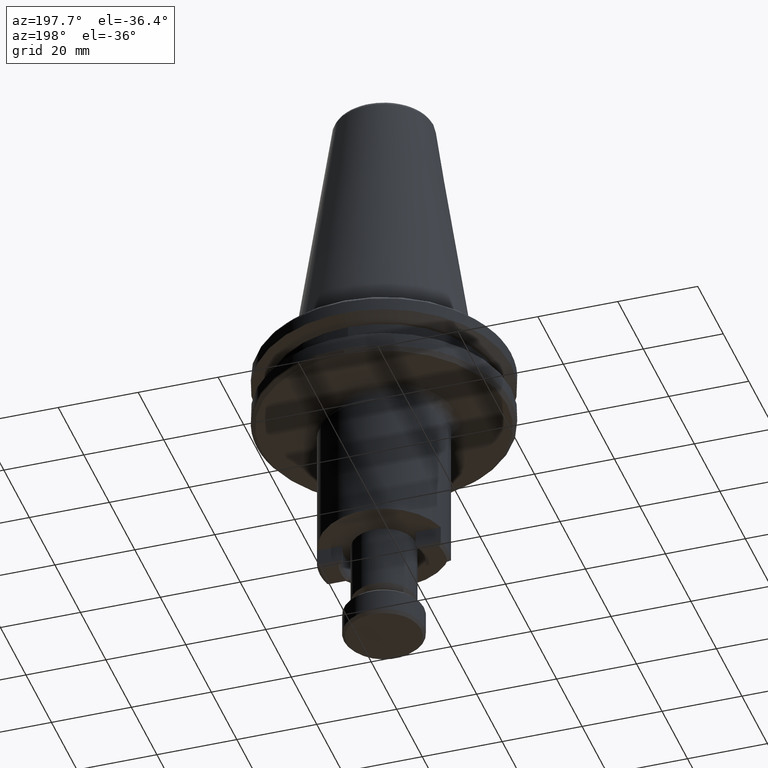
[diagram: clean part render]
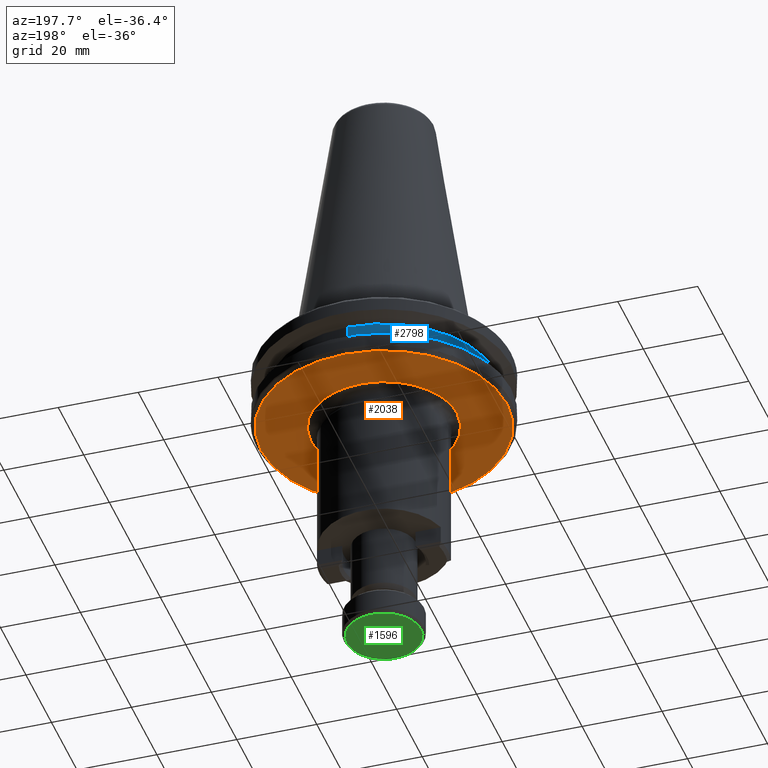
[diagram: same view with three faces highlighted in distinct colors, each labeled with its STEP entity id]
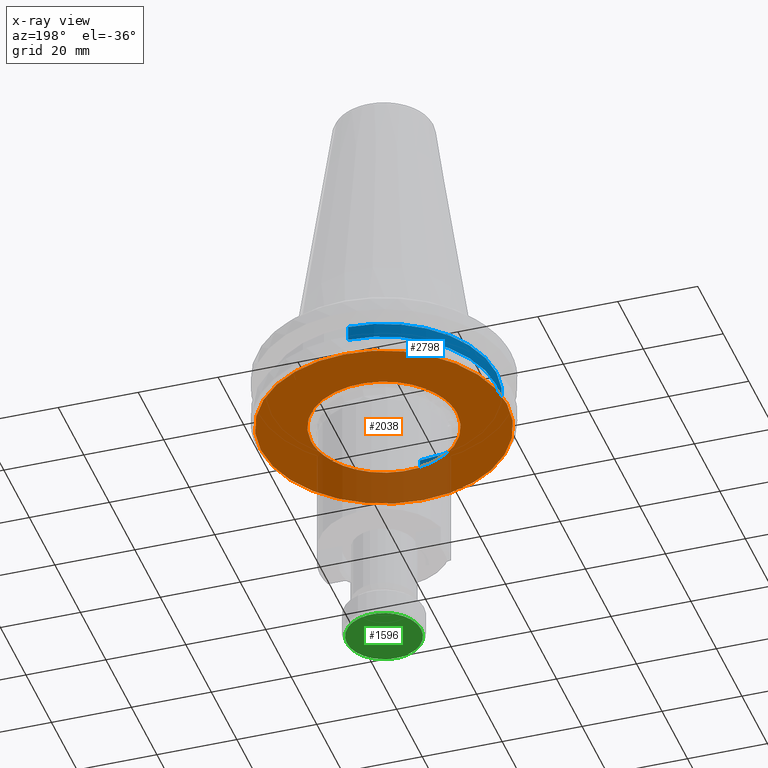
[diagram: x-ray of the same camera — body ghosted, the three highlighted faces saturated]
A machine part, auxiliary view with three faces highlighted in distinct colors.
The next image is the same camera in x-ray (body ghosted, the three faces saturated) — at least one of them is partly hidden behind the body in this view.
Their STEP definitions:

[orange] entity #2038 — the highlighted planar face has unit normal (0, 0, -1).
#137 = FACE_OUTER_BOUND ( 'NONE', #2966, .T. ) ;
#179 = CARTESIAN_POINT ( 'NONE',  ( 57.42240495508172400, 80.56351381232836700, 65.32314626776781100 ) ) ;
#190 = CARTESIAN_POINT ( 'NONE',  ( 57.36876700023148600, 80.75756612998836200, 65.32314626776782500 ) ) ;
#195 = CARTESIAN_POINT ( 'NONE',  ( 57.26706259045501900, 81.14679842264423800, 65.32314626776781100 ) ) ;
#244 = CARTESIAN_POINT ( 'NONE',  ( 56.74590007380801600, 85.49383738268851100, 65.32314626776781100 ) ) ;
#293 = CARTESIAN_POINT ( 'NONE',  ( 56.74590007657246800, 85.08732261833903000, 65.32314626776781100 ) ) ;
#295 = CARTESIAN_POINT ( 'NONE',  ( 93.12671189041458300, 82.66586528737627800, 65.32314626776781100 ) ) ;
#334 = CARTESIAN_POINT ( 'NONE',  ( 56.76614344545315300, 84.47878609937591000, 65.32314626776781100 ) ) ;
#343 = CARTESIAN_POINT ( 'NONE',  ( 91.47939218736434000, 77.44209249785640700, 65.32314626776783900 ) ) ;
#369 = CARTESIAN_POINT ( 'NONE',  ( 56.88496776371971500, 83.24108752922967400, 65.32314626776782500 ) ) ;
#380 = CARTESIAN_POINT ( 'NONE',  ( 56.86356462643578900, 83.41763131604655300, 65.32314626776779700 ) ) ;
#418 = CARTESIAN_POINT ( 'NONE',  ( 91.46337753945591900, 77.40949128364312100, 65.32314626776782500 ) ) ;
#434 = PLANE ( 'NONE',  #1000 ) ;
#492 = FACE_BOUND ( 'NONE', #1555, .T. ) ;
#515 = CARTESIAN_POINT ( 'NONE',  ( 93.34590007933917400, 85.49383738268851100, 65.32314626776781100 ) ) ;
#516 = B_SPLINE_CURVE_WITH_KNOTS ( 'NONE', 3,
 ( #2305, #2378, #2353, #2297, #2293, #2290, #2287, #2268, #2253, #2251, #2246, #2241, #2218, #2212, #2208, #2201, #2198, #2192, #2188, #2171, #2166, #2154, #2143, #2139, #1703, #1699, #1691, #2133, #2130, #2105, #2101, #2096, #2091, #2085, #2081, #2076, #2070, #2060, #2057, #2054, #2052, #2051, #2050, #2044, #2036, #2035, #2030, #2024, #2020, #2014, #2010, #2007, #1992, #1988, #1984, #1982, #1975, #1969, #1960, #1938, #1928, #1923, #1920, #1915, #1913, #1903, #1897, #1894, #1880, #1876, #1865, #1858, #1853, #1847, #1839, #1831, #1823, #1819, #1815, #1812, #1807, #1803, #1798, #1794, #1782, #1777, #1765, #1760, #1757, #1748, #1744, #1738, #1734, #1724, #1721, #1714, #1710, #1680, #1666, #1661, #1656, #1646, #1643, #1636, #1624, #1619, #1612, #1603, #1599, #1588, #1583, #1560, #1544, #1543, #1539, #2281, #2274, #2264, #1504, #1498, #1494, #1492, #1481, #1468, #1462, #1452, #1441, #1433, #1427, #1401 ),
 .UNSPECIFIED., .F., .F.,
 ( 4, 1, 1, 1, 1, 1, 2, 2, 1, 1, 1, 1, 1, 2, 2, 1, 1, 1, 1, 1, 2, 2, 1, 1, 1, 1, 1, 2, 2, 1, 1, 1, 1, 1, 2, 2, 1, 1, 1, 1, 1, 2, 2, 1, 1, 1, 1, 2, 2, 2, 1, 1, 1, 1, 2, 2, 1, 1, 1, 1, 1, 2, 2, 1, 1, 1, 1, 1, 2, 2, 1, 1, 1, 1, 1, 2, 2, 1, 1, 1, 1, 1, 2, 2, 1, 1, 1, 1, 1, 2, 2, 1, 1, 1, 1, 1, 2, 2, 4 ),
 ( 0.0000000000000000000, 0.03124999999995879700, 0.04687499999993823000, 0.05468749999992794700, 0.05859374999992286700, 0.06054687499992026500, 0.06152343749991896800, 0.06249999999991766300, 0.09374999999988666000, 0.1093749999998716200, 0.1171874999998637600, 0.1210937499998598300, 0.1230468749998578800, 0.1240234374998567700, 0.1249999999998556400, 0.1562499999998337400, 0.1718749999998228100, 0.1796874999998173400, 0.1835937499998142300, 0.1855468749998124800, 0.1865234374998116000, 0.1874999999998107300, 0.2187499999997970500, 0.2343749999997902200, 0.2421874999997862800, 0.2460937499997843400, 0.2480468749997833400, 0.2490234374997833400, 0.2499999999997834000, 0.2812499999997776200, 0.2968749999997749600, 0.3046874999997736300, 0.3085937499997727400, 0.3105468749997725700, 0.3115234374997729600, 0.3124999999997732900, 0.3437499999997761800, 0.3593749999997773400, 0.3671874999997776800, 0.3710937499997779600, 0.3730468749997777900, 0.3740234374997775700, 0.3749999999997773400, 0.4062499999997696800, 0.4218749999997655800, 0.4296874999997635800, 0.4335937499997625800, 0.4355468749997621900, 0.4374999999997617500, 0.4999999999997535300, 0.5312499999997497600, 0.5468749999997478700, 0.5546874999997473100, 0.5585937499997472000, 0.5605468749997468700, 0.5624999999997465400, 0.5937499999997459800, 0.6093749999997454300, 0.6171874999997450900, 0.6210937499997449800, 0.6230468749997450900, 0.6240234374997449800, 0.6249999999997448700, 0.6562499999997603000, 0.6718749999997680700, 0.6796874999997722900, 0.6835937499997747400, 0.6855468749997756200, 0.6865234374997757300, 0.6874999999997757300, 0.7187499999997850600, 0.7343749999997893900, 0.7421874999997918300, 0.7460937499997931700, 0.7480468749997938300, 0.7490234374997943900, 0.7499999999997948300, 0.7812499999998006000, 0.7968749999998033800, 0.8046874999998048200, 0.8085937499998054900, 0.8105468749998062700, 0.8115234374998066000, 0.8124999999998070400, 0.8437499999998312500, 0.8593749999998430100, 0.8671874999998489000, 0.8710937499998519000, 0.8730468749998530100, 0.8740234374998538900, 0.8749999999998547800, 0.9062499999998899800, 0.9218749999999076300, 0.9296874999999164000, 0.9335937499999204000, 0.9355468749999222800, 0.9365234374999237300, 0.9374999999999250600, 1.000000000000000000 ),
 .UNSPECIFIED. ) ;
#534 = CARTESIAN_POINT ( 'NONE',  ( 56.90593919076052700, 83.07888403072722400, 65.32314626776781100 ) ) ;
#537 = CARTESIAN_POINT ( 'NONE',  ( 60.32993639085017200, 74.61575792023070600, 65.32314626776779700 ) ) ;
#543 = CARTESIAN_POINT ( 'NONE',  ( 62.59493198929205700, 72.08078666628665600, 65.32314626776781100 ) ) ;
#547 = CARTESIAN_POINT ( 'NONE',  ( 62.18766515591195100, 72.46535905245356400, 65.32314626776781100 ) ) ;
#556 = CARTESIAN_POINT ( 'NONE',  ( 56.89622286169598200, 83.15284942265030600, 65.32314626776781100 ) ) ;
#559 = CARTESIAN_POINT ( 'NONE',  ( 60.38412707937595800, 74.54291586025823300, 65.32314626776781100 ) ) ;
#569 = CARTESIAN_POINT ( 'NONE',  ( 60.36242316916954600, 74.57203601448199500, 65.32314626776779700 ) ) ;
#582 = CARTESIAN_POINT ( 'NONE',  ( 57.08593977059850000, 81.92977363729990300, 65.32314626776782500 ) ) ;
#591 = CARTESIAN_POINT ( 'NONE',  ( 56.96889621020096000, 82.60862775730839800, 65.32314626776781100 ) ) ;
#594 = CARTESIAN_POINT ( 'NONE',  ( 56.82518658654240800, 83.77098918431291000, 65.32314626776782500 ) ) ;
#604 = B_SPLINE_CURVE_WITH_KNOTS ( 'NONE', 3,
 ( #244, #293, #334, #594, #380, #369, #556, #617, #609, #534, #591, #582, #195, #190, #179, #1759, #1770, #1644, #1649, #1657, #1796, #1980, #1881, #1874, #644, #636, #635, #1832, #1830, #1818, #1867, #1850, #1844, #537, #569, #559, #650, #808, #606, #547, #543, #1671, #1667, #1663, #1615, #1780, #1772, #1225, #1808, #1805, #1746, #1743, #1735, #1732, #1722, #1720, #1712, #1709, #1701, #1698, #1689, #1686, #1683, #1678, #1675, #1520, #1516, #1553, #1626, #1502, #1490, #1527, #1478, #1470, #1506, #1461, #1459, #1480, #1443, #1216, #1467, #1403, #1453, #1450, #1398, #1373, #1409, #1414, #1390, #1394, #1632, #1100, #1095, #1344, #1342, #1371, #1363, #1356, #1382, #1377, #3029, #1321, #1063, #1320, #2982, #1207, #418, #343, #973, #2610, #3069, #1054, #1274, #2873, #2523, #3177, #852, #966, #2283, #3134, #1879, #295, #2672, #3120, #1014, #3076, #1091, #1638, #2972, #1145 ),
 .UNSPECIFIED., .F., .F.,
 ( 4, 1, 1, 1, 1, 1, 2, 2, 1, 1, 1, 1, 1, 2, 2, 1, 1, 1, 1, 1, 2, 2, 1, 1, 1, 1, 1, 2, 2, 1, 1, 1, 1, 1, 2, 2, 1, 1, 1, 1, 1, 2, 2, 1, 1, 1, 1, 2, 2, 2, 1, 1, 1, 1, 2, 2, 1, 1, 1, 1, 1, 2, 2, 1, 1, 1, 1, 1, 2, 2, 1, 1, 1, 1, 1, 2, 2, 1, 1, 1, 1, 1, 2, 2, 1, 1, 1, 1, 1, 2, 2, 1, 1, 1, 1, 1, 2, 2, 4 ),
 ( 0.0000000000000000000, 0.03124999999997785800, 0.04687499999996679000, 0.05468749999996074700, 0.05859374999995719400, 0.06054687499995485600, 0.06152343749995421700, 0.06249999999995357200, 0.09374999999995213600, 0.1093749999999509300, 0.1171874999999499200, 0.1210937499999490100, 0.1230468749999485100, 0.1240234374999478600, 0.1249999999999472100, 0.1562499999999373600, 0.1718749999999320300, 0.1796874999999293900, 0.1835937499999284200, 0.1855468749999275600, 0.1865234374999271400, 0.1874999999999267300, 0.2187499999999122400, 0.2343749999999046600, 0.2421874999999008600, 0.2460937499998989700, 0.2480468749998983300, 0.2490234374998980000, 0.2499999999998976900, 0.2812499999998907500, 0.2968749999998872000, 0.3046874999998856500, 0.3085937499998845900, 0.3105468749998840900, 0.3115234374998838700, 0.3124999999998835900, 0.3437499999998659400, 0.3593749999998571100, 0.3671874999998526700, 0.3710937499998500100, 0.3730468749998486800, 0.3740234374998484500, 0.3749999999998481800, 0.4062499999998357400, 0.4218749999998297500, 0.4296874999998263600, 0.4335937499998243600, 0.4355468749998231400, 0.4374999999998219200, 0.4999999999997946100, 0.5312499999997810600, 0.5468749999997745100, 0.5546874999997715200, 0.5585937499997702900, 0.5605468749997699600, 0.5624999999997695200, 0.5937499999997635200, 0.6093749999997606400, 0.6171874999997589700, 0.6210937499997579700, 0.6230468749997576400, 0.6240234374997576400, 0.6249999999997577500, 0.6562499999997549700, 0.6718749999997539700, 0.6796874999997537500, 0.6835937499997536400, 0.6855468749997538600, 0.6865234374997542000, 0.6874999999997544200, 0.7187499999997738500, 0.7343749999997837300, 0.7421874999997887200, 0.7460937499997915000, 0.7480468749997931700, 0.7490234374997937200, 0.7499999999997941600, 0.7812499999998162600, 0.7968749999998273600, 0.8046874999998332400, 0.8085937499998362400, 0.8105468749998376900, 0.8115234374998381300, 0.8124999999998385700, 0.8437499999998450100, 0.8593749999998487900, 0.8671874999998506800, 0.8710937499998521200, 0.8730468749998527800, 0.8740234374998535600, 0.8749999999998543400, 0.9062499999998728800, 0.9218749999998827600, 0.9296874999998879800, 0.9335937499998906400, 0.9355468749998923100, 0.9365234374998936400, 0.9374999999998949700, 1.000000000000000000 ),
 .UNSPECIFIED. ) ;
#606 = CARTESIAN_POINT ( 'NONE',  ( 61.40560511386543400, 73.26435942714043400, 65.32314626776778300 ) ) ;
#609 = CARTESIAN_POINT ( 'NONE',  ( 56.90448626498098900, 83.08983587928635500, 65.32314626776782500 ) ) ;
#617 = CARTESIAN_POINT ( 'NONE',  ( 56.90116508854315200, 83.11504033129396900, 65.32314626776781100 ) ) ;
#620 = EDGE_CURVE ( 'NONE', #2379, #775, #516, .T. ) ;
#635 = CARTESIAN_POINT ( 'NONE',  ( 58.58225681731163800, 77.50392742685156100, 65.32314626776781100 ) ) ;
#636 = CARTESIAN_POINT ( 'NONE',  ( 58.56811207616245000, 77.53314141889934800, 65.32314626776781100 ) ) ;
#644 = CARTESIAN_POINT ( 'NONE',  ( 58.54695528030374900, 77.57698522901913000, 65.32314626776782500 ) ) ;
#650 = CARTESIAN_POINT ( 'NONE',  ( 60.39386767253105900, 74.52988236346887200, 65.32314626776782500 ) ) ;
#741 = ORIENTED_EDGE ( 'NONE', *, *, #2406, .T. ) ;
#775 = VERTEX_POINT ( 'NONE', #825 ) ;
#808 = CARTESIAN_POINT ( 'NONE',  ( 60.79093700590637200, 74.00039792376327300, 65.32314626776782500 ) ) ;
#825 = CARTESIAN_POINT ( 'NONE',  ( 56.74590007380801600, 85.49383738268851100, 65.32314626776781100 ) ) ;
#852 = CARTESIAN_POINT ( 'NONE',  ( 92.60478637749143600, 80.33867414243586300, 65.32314626776785400 ) ) ;
#858 = AXIS2_PLACEMENT_3D ( 'NONE', #1500, #1448, #1488 ) ;
#872 = CARTESIAN_POINT ( 'NONE',  ( 104.7299084825736100, 54.51712129944631600, 65.32314626776781100 ) ) ;
#966 = CARTESIAN_POINT ( 'NONE',  ( 92.60987425574485600, 80.35603779457508700, 65.32314626776781100 ) ) ;
#973 = CARTESIAN_POINT ( 'NONE',  ( 91.48823345089606100, 77.46016453285679400, 65.32314626776781100 ) ) ;
#1000 = AXIS2_PLACEMENT_3D ( 'NONE', #872, #2412, #2434 ) ;
#1014 = CARTESIAN_POINT ( 'NONE',  ( 93.17622168279068300, 83.00756742110584700, 65.32314626776781100 ) ) ;
#1054 = CARTESIAN_POINT ( 'NONE',  ( 92.34137026512570400, 79.50414192299152200, 65.32314626776781100 ) ) ;
#1063 = CARTESIAN_POINT ( 'NONE',  ( 91.02901205116289400, 76.57302062811849900, 65.32314626776781100 ) ) ;
#1091 = CARTESIAN_POINT ( 'NONE',  ( 93.18226622705209600, 83.05204396104595300, 65.32314626776781100 ) ) ;
#1095 = CARTESIAN_POINT ( 'NONE',  ( 88.25083662239515500, 72.79551230523057400, 65.32314626776779700 ) ) ;
#1100 = CARTESIAN_POINT ( 'NONE',  ( 87.56230217320694500, 72.12810172102712200, 65.32314626776781100 ) ) ;
#1145 = CARTESIAN_POINT ( 'NONE',  ( 93.34590007933917400, 85.49383738268851100, 65.32314626776781100 ) ) ;
#1207 = CARTESIAN_POINT ( 'NONE',  ( 91.43928701114087700, 77.36063200710334800, 65.32314626776781100 ) ) ;
#1216 = CARTESIAN_POINT ( 'NONE',  ( 83.57599451445672400, 69.30347137899492800, 65.32314626776782500 ) ) ;
#1225 = CARTESIAN_POINT ( 'NONE',  ( 64.35935142330744400, 70.60938788805854900, 65.32314626776781100 ) ) ;
#1274 = CARTESIAN_POINT ( 'NONE',  ( 92.48211161914652200, 79.93521540479598300, 65.32314626776779700 ) ) ;
#1320 = CARTESIAN_POINT ( 'NONE',  ( 91.26729404676925100, 77.02070176555810100, 65.32314626776782500 ) ) ;
#1321 = CARTESIAN_POINT ( 'NONE',  ( 90.52173476928449200, 75.69671841479593900, 65.32314626776781100 ) ) ;
#1342 = CARTESIAN_POINT ( 'NONE',  ( 89.34321392495924400, 74.06915920113483800, 65.32314626776782500 ) ) ;
#1344 = CARTESIAN_POINT ( 'NONE',  ( 88.98980796539169100, 73.63454562882881800, 65.32314626776782500 ) ) ;
#1356 = CARTESIAN_POINT ( 'NONE',  ( 89.63759097191099600, 74.44970535396099400, 65.32314626776781100 ) ) ;
#1357 = VERTEX_POINT ( 'NONE', #2034 ) ;
#1363 = CARTESIAN_POINT ( 'NONE',  ( 89.60123352066511900, 74.40172427871102900, 65.32314626776782500 ) ) ;
#1371 = CARTESIAN_POINT ( 'NONE',  ( 89.51589697676028800, 74.29024021491451900, 65.32314626776782500 ) ) ;
#1373 = CARTESIAN_POINT ( 'NONE',  ( 86.61404681522398600, 71.31204252506239500, 65.32314626776779700 ) ) ;
#1377 = CARTESIAN_POINT ( 'NONE',  ( 89.67501338161876800, 74.49932365410965900, 65.32314626776782500 ) ) ;
#1382 = CARTESIAN_POINT ( 'NONE',  ( 89.66178141645609400, 74.48173766874224100, 65.32314626776781100 ) ) ;
#1390 = CARTESIAN_POINT ( 'NONE',  ( 87.01297538911329400, 71.64900100687299300, 65.32314626776783900 ) ) ;
#1394 = CARTESIAN_POINT ( 'NONE',  ( 87.04590878881015200, 71.67753570132904900, 65.32314626776782500 ) ) ;
#1398 = CARTESIAN_POINT ( 'NONE',  ( 86.13955050042396500, 70.93221783556644800, 65.32314626776781100 ) ) ;
#1401 = CARTESIAN_POINT ( 'NONE',  ( 56.74590007380801600, 85.49383738268851100, 65.32314626776781100 ) ) ;
#1403 = CARTESIAN_POINT ( 'NONE',  ( 83.63845129916535400, 69.33653278459726700, 65.32314626776781100 ) ) ;
#1409 = CARTESIAN_POINT ( 'NONE',  ( 86.84763259470295800, 71.50731696968924200, 65.32314626776779700 ) ) ;
#1414 = CARTESIAN_POINT ( 'NONE',  ( 86.96350988996219700, 71.60629471697234300, 65.32314626776781100 ) ) ;
#1427 = CARTESIAN_POINT ( 'NONE',  ( 56.74590007657541000, 86.30755411596480500, 65.32314626776781100 ) ) ;
#1433 = CARTESIAN_POINT ( 'NONE',  ( 56.79988237976501600, 87.11728862737068400, 65.32314626776781100 ) ) ;
#1441 = CARTESIAN_POINT ( 'NONE',  ( 56.90953392609508700, 87.93563079984583900, 65.32314626776782500 ) ) ;
#1443 = CARTESIAN_POINT ( 'NONE',  ( 83.51466033716340600, 69.27120402854750100, 65.32314626776781100 ) ) ;
#1448 = DIRECTION ( 'NONE',  ( -0.0000000000000000000, -0.0000000000000000000, -1.000000000000000000 ) ) ;
#1450 = CARTESIAN_POINT ( 'NONE',  ( 85.16125884745579800, 70.21546525560549400, 65.32314626776782500 ) ) ;
#1452 = CARTESIAN_POINT ( 'NONE',  ( 56.91168795617656400, 87.95157965687894800, 65.32314626776783900 ) ) ;
#1453 = CARTESIAN_POINT ( 'NONE',  ( 84.27249624770905700, 69.67464327112058700, 65.32314626776782500 ) ) ;
#1459 = CARTESIAN_POINT ( 'NONE',  ( 83.08303975985249700, 69.05129749923391100, 65.32314626776781100 ) ) ;
#1461 = CARTESIAN_POINT ( 'NONE',  ( 82.50146209341724600, 68.77399525699804900, 65.32314626776781100 ) ) ;
#1462 = CARTESIAN_POINT ( 'NONE',  ( 56.91557847035650000, 87.98010733978428300, 65.32314626776781100 ) ) ;
#1467 = CARTESIAN_POINT ( 'NONE',  ( 83.61685292739701900, 69.32506410138597600, 65.32314626776781100 ) ) ;
#1468 = CARTESIAN_POINT ( 'NONE',  ( 56.92146377885833200, 88.02288781043796500, 65.32314626776781100 ) ) ;
#1470 = CARTESIAN_POINT ( 'NONE',  ( 80.26682386273105900, 67.93878852276196800, 65.32314626776782500 ) ) ;
#1478 = CARTESIAN_POINT ( 'NONE',  ( 79.50574618609077500, 67.74554716482036600, 65.32314626776782500 ) ) ;
#1480 = CARTESIAN_POINT ( 'NONE',  ( 83.37122135163267000, 69.19676567614425300, 65.32314626776782500 ) ) ;
#1481 = CARTESIAN_POINT ( 'NONE',  ( 56.93554292598568600, 88.12263153269968500, 65.32314626776781100 ) ) ;
#1488 = DIRECTION ( 'NONE',  ( -1.000000000000000000, 0.0000000000000000000, 0.0000000000000000000 ) ) ;
#1490 = CARTESIAN_POINT ( 'NONE',  ( 79.36555391079542700, 67.71089675405680500, 65.32314626776779700 ) ) ;
#1492 = CARTESIAN_POINT ( 'NONE',  ( 56.96508826273281300, 88.32180947350222800, 65.32314626776782500 ) ) ;
#1494 = CARTESIAN_POINT ( 'NONE',  ( 57.02972710619670200, 88.71892734022357300, 65.32314626776781100 ) ) ;
#1498 = CARTESIAN_POINT ( 'NONE',  ( 57.18119747300320200, 89.50821101413161800, 65.32314626776781100 ) ) ;
#1500 = CARTESIAN_POINT ( 'NONE',  ( 75.04590007657358800, 85.49383738044632300, 65.32314626776769700 ) ) ;
#1502 = CARTESIAN_POINT ( 'NONE',  ( 79.22671619128753700, 67.67734634852458000, 65.32314626776782500 ) ) ;
#1504 = CARTESIAN_POINT ( 'NONE',  ( 57.34907381005801600, 90.17625063256478800, 65.32314626776782500 ) ) ;
#1506 = CARTESIAN_POINT ( 'NONE',  ( 81.31744882904730800, 68.27392721886550900, 65.32314626776781100 ) ) ;
#1516 = CARTESIAN_POINT ( 'NONE',  ( 76.94271549935875500, 67.26414231091527500, 65.32314626776781100 ) ) ;
#1520 = CARTESIAN_POINT ( 'NONE',  ( 75.80803636212027600, 67.19379184620882500, 65.32314626776783900 ) ) ;
#1527 = CARTESIAN_POINT ( 'NONE',  ( 79.45806798790962900, 67.73363045548488500, 65.32314626776782500 ) ) ;
#1539 = CARTESIAN_POINT ( 'NONE',  ( 57.51000785687282500, 90.72682554565510300, 65.32314626776782500 ) ) ;
#1543 = CARTESIAN_POINT ( 'NONE',  ( 57.54267519320934800, 90.83559192999882700, 65.32314626776782500 ) ) ;
#1544 = CARTESIAN_POINT ( 'NONE',  ( 57.60968853399402400, 91.05245935609052300, 65.32314626776781100 ) ) ;
#1553 = CARTESIAN_POINT ( 'NONE',  ( 78.25158856673893100, 67.46945069368247500, 65.32314626776781100 ) ) ;
#1555 = EDGE_LOOP ( 'NONE', ( #2571, #1974 ) ) ;
#1560 = CARTESIAN_POINT ( 'NONE',  ( 57.75042988801028100, 91.48353283789107600, 65.32314626776782500 ) ) ;
#1583 = CARTESIAN_POINT ( 'NONE',  ( 58.05877128582997000, 92.33503431996072700, 65.32314626776781100 ) ) ;
#1588 = CARTESIAN_POINT ( 'NONE',  ( 58.36910738073930800, 93.04664333625216000, 65.32314626776782500 ) ) ;
#1599 = CARTESIAN_POINT ( 'NONE',  ( 58.60356670225085200, 93.52751022803494200, 65.32314626776782500 ) ) ;
#1603 = CARTESIAN_POINT ( 'NONE',  ( 58.61240796578298500, 93.54558226303586800, 65.32314626776781100 ) ) ;
#1612 = CARTESIAN_POINT ( 'NONE',  ( 58.62842261369208100, 93.57818347724988000, 65.32314626776779700 ) ) ;
#1615 = CARTESIAN_POINT ( 'NONE',  ( 62.98279726575678700, 71.73259154620281200, 65.32314626776778300 ) ) ;
#1619 = CARTESIAN_POINT ( 'NONE',  ( 58.65251314200810400, 93.62704275379069000, 65.32314626776782500 ) ) ;
#1624 = CARTESIAN_POINT ( 'NONE',  ( 58.70920426991203600, 93.74074991892391000, 65.32314626776781100 ) ) ;
#1626 = CARTESIAN_POINT ( 'NONE',  ( 78.90229528557956900, 67.60291309521849700, 65.32314626776781100 ) ) ;
#1632 = CARTESIAN_POINT ( 'NONE',  ( 87.06366662064174000, 71.69298066089808700, 65.32314626776781100 ) ) ;
#1636 = CARTESIAN_POINT ( 'NONE',  ( 58.82450610638602500, 93.96697299534264400, 65.32314626776781100 ) ) ;
#1638 = CARTESIAN_POINT ( 'NONE',  ( 93.29191777338218100, 83.87038613355768700, 65.32314626776781100 ) ) ;
#1643 = CARTESIAN_POINT ( 'NONE',  ( 59.06278810199853500, 94.41465413278879700, 65.32314626776779700 ) ) ;
#1644 = CARTESIAN_POINT ( 'NONE',  ( 57.46985612915947400, 80.39748194928320400, 65.32314626776778300 ) ) ;
#1646 = CARTESIAN_POINT ( 'NONE',  ( 59.57006538388182500, 95.29095634611665800, 65.32314626776781100 ) ) ;
#1649 = CARTESIAN_POINT ( 'NONE',  ( 57.47336097233142700, 80.38540290249267200, 65.32314626776779700 ) ) ;
#1656 = CARTESIAN_POINT ( 'NONE',  ( 60.05752583805308100, 96.00939813771538000, 65.32314626776779700 ) ) ;
#1657 = CARTESIAN_POINT ( 'NONE',  ( 57.62315141231608400, 79.87174067498598600, 65.32314626776781100 ) ) ;
#1661 = CARTESIAN_POINT ( 'NONE',  ( 60.41678677152727800, 96.48835110678155000, 65.32314626776782500 ) ) ;
#1663 = CARTESIAN_POINT ( 'NONE',  ( 62.95264365303963700, 71.75908358680438000, 65.32314626776783900 ) ) ;
#1666 = CARTESIAN_POINT ( 'NONE',  ( 60.43001873668972500, 96.50593709214874100, 65.32314626776781100 ) ) ;
#1667 = CARTESIAN_POINT ( 'NONE',  ( 62.90748571973328800, 71.79888828967622800, 65.32314626776781100 ) ) ;
#1671 = CARTESIAN_POINT ( 'NONE',  ( 62.80262460907133700, 71.89223242349737600, 65.32314626776781100 ) ) ;
#1675 = CARTESIAN_POINT ( 'NONE',  ( 73.52162750547429900, 67.19392844892129800, 65.32314626776781100 ) ) ;
#1678 = CARTESIAN_POINT ( 'NONE',  ( 72.01864249214239100, 67.38162084303877500, 65.32314626776782500 ) ) ;
#1680 = CARTESIAN_POINT ( 'NONE',  ( 60.45420918123417700, 96.53796940692939200, 65.32314626776778300 ) ) ;
#1683 = CARTESIAN_POINT ( 'NONE',  ( 70.49511726070034000, 67.76864222416392600, 65.32314626776781100 ) ) ;
#1686 = CARTESIAN_POINT ( 'NONE',  ( 70.45172713958179100, 67.77984252929965700, 65.32314626776779700 ) ) ;
#1689 = CARTESIAN_POINT ( 'NONE',  ( 70.36235967966055700, 67.80325618108369700, 65.32314626776782500 ) ) ;
#1691 = CARTESIAN_POINT ( 'NONE',  ( 91.50954333583510400, 93.48374733404271800, 65.32314626776781100 ) ) ;
#1698 = CARTESIAN_POINT ( 'NONE',  ( 70.22849858223170800, 67.83886208476772600, 65.32314626776779700 ) ) ;
#1699 = CARTESIAN_POINT ( 'NONE',  ( 91.52368807698449900, 93.45453334199532900, 65.32314626776781100 ) ) ;
#1701 = CARTESIAN_POINT ( 'NONE',  ( 69.91748666873601800, 67.92534050875383400, 65.32314626776782500 ) ) ;
#1703 = CARTESIAN_POINT ( 'NONE',  ( 91.54484487284347000, 93.41068953187608800, 65.32314626776782500 ) ) ;
#1709 = CARTESIAN_POINT ( 'NONE',  ( 69.30078543043072200, 68.11188928495241200, 65.32314626776781100 ) ) ;
#1710 = CARTESIAN_POINT ( 'NONE',  ( 60.49056663247921500, 96.58595048217853200, 65.32314626776781100 ) ) ;
#1712 = CARTESIAN_POINT ( 'NONE',  ( 68.08867330856483600, 68.53935455025526800, 65.32314626776781100 ) ) ;
#1714 = CARTESIAN_POINT ( 'NONE',  ( 60.57590317638214800, 96.69743454597318100, 65.32314626776781100 ) ) ;
#1720 = CARTESIAN_POINT ( 'NONE',  ( 67.08621781224199800, 68.99895514263889100, 65.32314626776785400 ) ) ;
#1721 = CARTESIAN_POINT ( 'NONE',  ( 60.74858622817976800, 96.91851555974957900, 65.32314626776782500 ) ) ;
#1722 = CARTESIAN_POINT ( 'NONE',  ( 66.41375779439077600, 69.35764803861414400, 65.32314626776779700 ) ) ;
#1724 = CARTESIAN_POINT ( 'NONE',  ( 61.10199218774195600, 97.35312913205038400, 65.32314626776781100 ) ) ;
#1732 = CARTESIAN_POINT ( 'NONE',  ( 66.39569460755295400, 69.36732651760387100, 65.32314626776779700 ) ) ;
#1734 = CARTESIAN_POINT ( 'NONE',  ( 61.84096353073421400, 98.19216245564453500, 65.32314626776781100 ) ) ;
#1735 = CARTESIAN_POINT ( 'NONE',  ( 66.35732008488282900, 69.38796965136181400, 65.32314626776779700 ) ) ;
#1738 = CARTESIAN_POINT ( 'NONE',  ( 62.52949797992958700, 98.85957303985507800, 65.32314626776782500 ) ) ;
#1743 = CARTESIAN_POINT ( 'NONE',  ( 66.29982454134386700, 69.41902952507085400, 65.32314626776779700 ) ) ;
#1744 = CARTESIAN_POINT ( 'NONE',  ( 63.02813353250468300, 99.29469409999390500, 65.32314626776779700 ) ) ;
#1746 = CARTESIAN_POINT ( 'NONE',  ( 66.16613195634961600, 69.49216877522954400, 65.32314626776781100 ) ) ;
#1748 = CARTESIAN_POINT ( 'NONE',  ( 63.04589136433623500, 99.31013905956299900, 65.32314626776782500 ) ) ;
#1757 = CARTESIAN_POINT ( 'NONE',  ( 63.07882476403339900, 99.33867375401939600, 65.32314626776782500 ) ) ;
#1759 = CARTESIAN_POINT ( 'NONE',  ( 57.44992036999739300, 80.46662861066536700, 65.32314626776783900 ) ) ;
#1760 = CARTESIAN_POINT ( 'NONE',  ( 63.12829026318480900, 99.38138004392037300, 65.32314626776781100 ) ) ;
#1765 = CARTESIAN_POINT ( 'NONE',  ( 63.24416755844496400, 99.48035779120452600, 65.32314626776782500 ) ) ;
#1770 = CARTESIAN_POINT ( 'NONE',  ( 57.46186192728065800, 80.42513658648843500, 65.32314626776781100 ) ) ;
#1772 = CARTESIAN_POINT ( 'NONE',  ( 63.53798854039102700, 71.24796339861046600, 65.32314626776781100 ) ) ;
#1777 = CARTESIAN_POINT ( 'NONE',  ( 63.47775333792547800, 99.67563223583313500, 65.32314626776781100 ) ) ;
#1780 = CARTESIAN_POINT ( 'NONE',  ( 62.99661820248883300, 71.72048498347581400, 65.32314626776781100 ) ) ;
#1782 = CARTESIAN_POINT ( 'NONE',  ( 63.95224965272785800, 100.0554569253318400, 65.32314626776781100 ) ) ;
#1794 = CARTESIAN_POINT ( 'NONE',  ( 64.93054130569791500, 100.7722095052950400, 65.32314626776781100 ) ) ;
#1796 = CARTESIAN_POINT ( 'NONE',  ( 57.87191013884214600, 79.13628050544076600, 65.32314626776779700 ) ) ;
#1798 = CARTESIAN_POINT ( 'NONE',  ( 65.81930390544125900, 101.3130314897762600, 65.32314626776781100 ) ) ;
#1803 = CARTESIAN_POINT ( 'NONE',  ( 66.45334885398035900, 101.6511419762945000, 65.32314626776779700 ) ) ;
#1805 = CARTESIAN_POINT ( 'NONE',  ( 65.90060151941473500, 69.64111212156429100, 65.32314626776782500 ) ) ;
#1807 = CARTESIAN_POINT ( 'NONE',  ( 66.47494722574859300, 101.6626106595056600, 65.32314626776781100 ) ) ;
#1808 = CARTESIAN_POINT ( 'NONE',  ( 65.37695957775960700, 69.94965819830321200, 65.32314626776781100 ) ) ;
#1812 = CARTESIAN_POINT ( 'NONE',  ( 66.51580563868864700, 101.6842033818964100, 65.32314626776781100 ) ) ;
#1815 = CARTESIAN_POINT ( 'NONE',  ( 66.57713981598162400, 101.7164707323434000, 65.32314626776782500 ) ) ;
#1818 = CARTESIAN_POINT ( 'NONE',  ( 59.26785853416545500, 76.19124135957791600, 65.32314626776781100 ) ) ;
#1819 = CARTESIAN_POINT ( 'NONE',  ( 66.72057880151150800, 101.7909090847457100, 65.32314626776782500 ) ) ;
#1823 = CARTESIAN_POINT ( 'NONE',  ( 67.00876039329027400, 101.9363772616542700, 65.32314626776782500 ) ) ;
#1830 = CARTESIAN_POINT ( 'NONE',  ( 58.85087152264514300, 76.95280337815282200, 65.32314626776782500 ) ) ;
#1831 = CARTESIAN_POINT ( 'NONE',  ( 67.59033805972332200, 102.2136795038875300, 65.32314626776782500 ) ) ;
#1832 = CARTESIAN_POINT ( 'NONE',  ( 58.58851157281587500, 77.49104665931130900, 65.32314626776781100 ) ) ;
#1839 = CARTESIAN_POINT ( 'NONE',  ( 68.77435132409145500, 102.7137475420179800, 65.32314626776781100 ) ) ;
#1844 = CARTESIAN_POINT ( 'NONE',  ( 60.25461751703730300, 74.71806742120223500, 65.32314626776781100 ) ) ;
#1847 = CARTESIAN_POINT ( 'NONE',  ( 69.82497629041056100, 103.0488862381252600, 65.32314626776781100 ) ) ;
#1850 = CARTESIAN_POINT ( 'NONE',  ( 60.10591420514028000, 74.92385330671031300, 65.32314626776781100 ) ) ;
#1853 = CARTESIAN_POINT ( 'NONE',  ( 70.58605396705499400, 103.2421275960721700, 65.32314626776782500 ) ) ;
#1858 = CARTESIAN_POINT ( 'NONE',  ( 70.63373216523631000, 103.2540443054079300, 65.32314626776779700 ) ) ;
#1865 = CARTESIAN_POINT ( 'NONE',  ( 70.72624624235093900, 103.2767780068365900, 65.32314626776781100 ) ) ;
#1867 = CARTESIAN_POINT ( 'NONE',  ( 59.81624532426160800, 75.34009261198627900, 65.32314626776781100 ) ) ;
#1871 = CIRCLE ( 'NONE', #858, 30.77499999995848900 ) ;
#1874 = CARTESIAN_POINT ( 'NONE',  ( 58.49801163435554900, 77.67944720696894500, 65.32314626776783900 ) ) ;
#1876 = CARTESIAN_POINT ( 'NONE',  ( 70.86508396185945500, 103.3103284123696600, 65.32314626776781100 ) ) ;
#1879 = CARTESIAN_POINT ( 'NONE',  ( 93.06207304695080000, 82.26874742064499900, 65.32314626776781100 ) ) ;
#1880 = CARTESIAN_POINT ( 'NONE',  ( 71.18950486756867200, 103.3847616656775600, 65.32314626776782500 ) ) ;
#1881 = CARTESIAN_POINT ( 'NONE',  ( 58.40181318668092600, 77.88501018021634100, 65.32314626776781100 ) ) ;
#1894 = CARTESIAN_POINT ( 'NONE',  ( 71.84021158641121500, 103.5182240672163100, 65.32314626776781100 ) ) ;
#1895 = DIRECTION ( 'NONE',  ( -0.0000000000000000000, -0.0000000000000000000, -1.000000000000000000 ) ) ;
#1897 = CARTESIAN_POINT ( 'NONE',  ( 73.14908465379298300, 103.7235324499858300, 65.32314626776781100 ) ) ;
#1903 = CARTESIAN_POINT ( 'NONE',  ( 74.28376379102866200, 103.7938829146886500, 65.32314626776782500 ) ) ;
#1913 = CARTESIAN_POINT ( 'NONE',  ( 76.57017264766358300, 103.7937463119616400, 65.32314626776782500 ) ) ;
#1915 = CARTESIAN_POINT ( 'NONE',  ( 78.07315766107578300, 103.6060539178442800, 65.32314626776782500 ) ) ;
#1920 = CARTESIAN_POINT ( 'NONE',  ( 79.59668289244253000, 103.2190325367295700, 65.32314626776781100 ) ) ;
#1923 = CARTESIAN_POINT ( 'NONE',  ( 79.64007301356653600, 103.2078322315921900, 65.32314626776783900 ) ) ;
#1928 = CARTESIAN_POINT ( 'NONE',  ( 79.72944047349082600, 103.1844185798069300, 65.32314626776781100 ) ) ;
#1938 = CARTESIAN_POINT ( 'NONE',  ( 79.86330157092406500, 103.1488126761210300, 65.32314626776781100 ) ) ;
#1960 = CARTESIAN_POINT ( 'NONE',  ( 80.17431348442904900, 103.0623342521311700, 65.32314626776782500 ) ) ;
#1969 = CARTESIAN_POINT ( 'NONE',  ( 80.79101472274854200, 102.8757854759267000, 65.32314626776782500 ) ) ;
#1974 = ORIENTED_EDGE ( 'NONE', *, *, #2309, .T. ) ;
#1975 = CARTESIAN_POINT ( 'NONE',  ( 82.00312684462585400, 102.4483202106192400, 65.32314626776782500 ) ) ;
#1980 = CARTESIAN_POINT ( 'NONE',  ( 58.21617166821865700, 78.29869219610263500, 65.32314626776781100 ) ) ;
#1982 = CARTESIAN_POINT ( 'NONE',  ( 83.00558234092926600, 101.9887196182439200, 65.32314626776782500 ) ) ;
#1984 = CARTESIAN_POINT ( 'NONE',  ( 83.67804235875367200, 101.6300267222798500, 65.32314626776782500 ) ) ;
#1988 = CARTESIAN_POINT ( 'NONE',  ( 83.69610554559368200, 101.6203482432888600, 65.32314626776783900 ) ) ;
#1992 = CARTESIAN_POINT ( 'NONE',  ( 83.73448006826517100, 101.5997051095299800, 65.32314626776781100 ) ) ;
#2007 = CARTESIAN_POINT ( 'NONE',  ( 83.79197561180618000, 101.5686452358196700, 65.32314626776782500 ) ) ;
#2010 = CARTESIAN_POINT ( 'NONE',  ( 83.92566819680487800, 101.4955059856580000, 65.32314626776781100 ) ) ;
#2014 = CARTESIAN_POINT ( 'NONE',  ( 84.19119863374777400, 101.3465626393180100, 65.32314626776781100 ) ) ;
#2020 = CARTESIAN_POINT ( 'NONE',  ( 84.71484057541526600, 101.0380165625710000, 65.32314626776781100 ) ) ;
#2024 = CARTESIAN_POINT ( 'NONE',  ( 85.73244872987741900, 100.3782868728092400, 65.32314626776783900 ) ) ;
#2030 = CARTESIAN_POINT ( 'NONE',  ( 86.55381161277708200, 99.73971136226862200, 65.32314626776782500 ) ) ;
#2034 = CARTESIAN_POINT ( 'NONE',  ( 75.04590007657358800, 116.2688373804048000, 65.32314626776769700 ) ) ;
#2035 = CARTESIAN_POINT ( 'NONE',  ( 87.09518195065614100, 99.26718977741859400, 65.32314626776781100 ) ) ;
#2036 = CARTESIAN_POINT ( 'NONE',  ( 87.10900288739024700, 99.25508321468969100, 65.32314626776781100 ) ) ;
#2038 = ADVANCED_FACE ( 'NONE', ( #492, #137 ), #434, .T. ) ;
#2044 = CARTESIAN_POINT ( 'NONE',  ( 87.13915650010874000, 99.22859117408668800, 65.32314626776779700 ) ) ;
#2050 = CARTESIAN_POINT ( 'NONE',  ( 87.18431443341704300, 99.18878647121272300, 65.32314626776782500 ) ) ;
#2051 = CARTESIAN_POINT ( 'NONE',  ( 87.28917554408334900, 99.09544233738697000, 65.32314626776781100 ) ) ;
#2052 = CARTESIAN_POINT ( 'NONE',  ( 87.49686816387048800, 98.90688809458930600, 65.32314626776782500 ) ) ;
#2054 = CARTESIAN_POINT ( 'NONE',  ( 87.90413499726268800, 98.52231570840957900, 65.32314626776781100 ) ) ;
#2057 = CARTESIAN_POINT ( 'NONE',  ( 88.68619503931888900, 97.72331533371237800, 65.32314626776781100 ) ) ;
#2060 = CARTESIAN_POINT ( 'NONE',  ( 89.30086314726168000, 96.98727683710727400, 65.32314626776783900 ) ) ;
#2070 = CARTESIAN_POINT ( 'NONE',  ( 89.69793248061445500, 96.45779239742580600, 65.32314626776779700 ) ) ;
#2076 = CARTESIAN_POINT ( 'NONE',  ( 89.70767307376951300, 96.44475890063634400, 65.32314626776781100 ) ) ;
#2081 = CARTESIAN_POINT ( 'NONE',  ( 89.72937698397527100, 96.41563874641320800, 65.32314626776782500 ) ) ;
#2085 = CARTESIAN_POINT ( 'NONE',  ( 89.76186376229357200, 96.37191684066537800, 65.32314626776779700 ) ) ;
#2091 = CARTESIAN_POINT ( 'NONE',  ( 89.83718263610421700, 96.26960733969586700, 65.32314626776782500 ) ) ;
#2096 = CARTESIAN_POINT ( 'NONE',  ( 89.98588594799717600, 96.06382145419135600, 65.32314626776781100 ) ) ;
#2101 = CARTESIAN_POINT ( 'NONE',  ( 90.27555482886965900, 95.64758214892083300, 65.32314626776782500 ) ) ;
#2105 = CARTESIAN_POINT ( 'NONE',  ( 90.82394161896091600, 94.79643340133365800, 65.32314626776782500 ) ) ;
#2130 = CARTESIAN_POINT ( 'NONE',  ( 91.24092863048990400, 94.03487138275117700, 65.32314626776781100 ) ) ;
#2133 = CARTESIAN_POINT ( 'NONE',  ( 91.50328858033103100, 93.49662810158230300, 65.32314626776779700 ) ) ;
#2139 = CARTESIAN_POINT ( 'NONE',  ( 91.59378851879219500, 93.30822755392745200, 65.32314626776781100 ) ) ;
#2143 = CARTESIAN_POINT ( 'NONE',  ( 91.68998696646788500, 93.10266458068214500, 65.32314626776781100 ) ) ;
#2154 = CARTESIAN_POINT ( 'NONE',  ( 91.87562848493173800, 92.68898256479921800, 65.32314626776781100 ) ) ;
#2166 = CARTESIAN_POINT ( 'NONE',  ( 92.21989001430964100, 91.85139425546360300, 65.32314626776781100 ) ) ;
#2171 = CARTESIAN_POINT ( 'NONE',  ( 92.46864874083367200, 91.11593408591365100, 65.32314626776782500 ) ) ;
#2188 = CARTESIAN_POINT ( 'NONE',  ( 92.61843918081550000, 90.60227185840044200, 65.32314626776781100 ) ) ;
#2192 = CARTESIAN_POINT ( 'NONE',  ( 92.62194402398770900, 90.59019281160850300, 65.32314626776781100 ) ) ;
#2198 = CARTESIAN_POINT ( 'NONE',  ( 92.62993822586675200, 90.56253817440169500, 65.32314626776778300 ) ) ;
#2201 = CARTESIAN_POINT ( 'NONE',  ( 92.64187978315031600, 90.52104615022244600, 65.32314626776782500 ) ) ;
#2208 = CARTESIAN_POINT ( 'NONE',  ( 92.66939519806668100, 90.42416094855431700, 65.32314626776781100 ) ) ;
#2212 = CARTESIAN_POINT ( 'NONE',  ( 92.72303315291817700, 90.23010863088508400, 65.32314626776779700 ) ) ;
#2218 = CARTESIAN_POINT ( 'NONE',  ( 92.82473756269656900, 89.84087633821496900, 65.32314626776781100 ) ) ;
#2241 = CARTESIAN_POINT ( 'NONE',  ( 93.00586038255461600, 89.05790112354795000, 65.32314626776781100 ) ) ;
#2246 = CARTESIAN_POINT ( 'NONE',  ( 93.12290394294957700, 88.37904700355873900, 65.32314626776779700 ) ) ;
#2251 = CARTESIAN_POINT ( 'NONE',  ( 93.18586096238648500, 87.90879073016660100, 65.32314626776781100 ) ) ;
#2253 = CARTESIAN_POINT ( 'NONE',  ( 93.18731388816615900, 87.89783888160765500, 65.32314626776782500 ) ) ;
#2264 = CARTESIAN_POINT ( 'NONE',  ( 57.48192589740214900, 90.63163696631743000, 65.32314626776779700 ) ) ;
#2268 = CARTESIAN_POINT ( 'NONE',  ( 93.19063506460396700, 87.87263442960363600, 65.32314626776779700 ) ) ;
#2274 = CARTESIAN_POINT ( 'NONE',  ( 57.48701377565506500, 90.64900061845568800, 65.32314626776779700 ) ) ;
#2281 = CARTESIAN_POINT ( 'NONE',  ( 57.49618742716915400, 90.68014009422971400, 65.32314626776779700 ) ) ;
#2283 = CARTESIAN_POINT ( 'NONE',  ( 92.74272634308937300, 80.81142412830928400, 65.32314626776781100 ) ) ;
#2287 = CARTESIAN_POINT ( 'NONE',  ( 93.19557729145117300, 87.83482533825554100, 65.32314626776781100 ) ) ;
#2290 = CARTESIAN_POINT ( 'NONE',  ( 93.20683238942743300, 87.74658723171450000, 65.32314626776782500 ) ) ;
#2293 = CARTESIAN_POINT ( 'NONE',  ( 93.22823552671130200, 87.57004344505097000, 65.32314626776781100 ) ) ;
#2297 = CARTESIAN_POINT ( 'NONE',  ( 93.26661356660474700, 87.21668557739774000, 65.32314626776781100 ) ) ;
#2305 = CARTESIAN_POINT ( 'NONE',  ( 93.34590007933917400, 85.49383738268851100, 65.32314626776781100 ) ) ;
#2309 = EDGE_CURVE ( 'NONE', #775, #2379, #604, .T. ) ;
#2317 = CIRCLE ( 'NONE', #2830, 30.77499999995848900 ) ;
#2353 = CARTESIAN_POINT ( 'NONE',  ( 93.32565670769405100, 86.50888866478712200, 65.32314626776782500 ) ) ;
#2378 = CARTESIAN_POINT ( 'NONE',  ( 93.34590007657470800, 85.90035215002787100, 65.32314626776781100 ) ) ;
#2379 = VERTEX_POINT ( 'NONE', #515 ) ;
#2406 = EDGE_CURVE ( 'NONE', #1357, #2983, #2317, .T. ) ;
#2412 = DIRECTION ( 'NONE',  ( 0.0000000000000000000, 0.0000000000000000000, -1.000000000000000000 ) ) ;
#2434 = DIRECTION ( 'NONE',  ( -1.000000000000000000, 0.0000000000000000000, -0.0000000000000000000 ) ) ;
#2523 = CARTESIAN_POINT ( 'NONE',  ( 92.58179229627242500, 80.26084921523541000, 65.32314626776781100 ) ) ;
#2549 = CARTESIAN_POINT ( 'NONE',  ( 75.04590007657358800, 85.49383738044632300, 65.32314626776769700 ) ) ;
#2571 = ORIENTED_EDGE ( 'NONE', *, *, #620, .T. ) ;
#2610 = CARTESIAN_POINT ( 'NONE',  ( 91.72269277239908500, 77.94103142463235700, 65.32314626776779700 ) ) ;
#2640 = CARTESIAN_POINT ( 'NONE',  ( 75.04590007657358800, 54.71883738048782700, 65.32314626776769700 ) ) ;
#2672 = CARTESIAN_POINT ( 'NONE',  ( 93.15625722716158900, 82.86504322818521500, 65.32314626776781100 ) ) ;
#2737 = ORIENTED_EDGE ( 'NONE', *, *, #2864, .T. ) ;
#2830 = AXIS2_PLACEMENT_3D ( 'NONE', #2549, #1895, #2986 ) ;
#2864 = EDGE_CURVE ( 'NONE', #2983, #1357, #1871, .T. ) ;
#2873 = CARTESIAN_POINT ( 'NONE',  ( 92.54912495993426100, 80.15208283089026500, 65.32314626776782500 ) ) ;
#2966 = EDGE_LOOP ( 'NONE', ( #2737, #741 ) ) ;
#2972 = CARTESIAN_POINT ( 'NONE',  ( 93.34590007657175200, 84.68012064870058000, 65.32314626776781100 ) ) ;
#2982 = CARTESIAN_POINT ( 'NONE',  ( 91.38259588323921900, 77.24692484197250100, 65.32314626776781100 ) ) ;
#2983 = VERTEX_POINT ( 'NONE', #2640 ) ;
#2986 = DIRECTION ( 'NONE',  ( -1.000000000000000000, 0.0000000000000000000, 0.0000000000000000000 ) ) ;
#3029 = CARTESIAN_POINT ( 'NONE',  ( 90.03427431510471000, 74.97827662318823600, 65.32314626776781100 ) ) ;
#3069 = CARTESIAN_POINT ( 'NONE',  ( 92.03302886730224900, 78.65264044091867400, 65.32314626776782500 ) ) ;
#3076 = CARTESIAN_POINT ( 'NONE',  ( 93.18011219697062600, 83.03609510401229000, 65.32314626776781100 ) ) ;
#3120 = CARTESIAN_POINT ( 'NONE',  ( 93.17033637428886500, 82.96478695045053100, 65.32314626776781100 ) ) ;
#3134 = CARTESIAN_POINT ( 'NONE',  ( 92.91060268014437900, 81.47946374672892500, 65.32314626776781100 ) ) ;
#3177 = CARTESIAN_POINT ( 'NONE',  ( 92.59561272597682100, 80.30753466666145400, 65.32314626776782500 ) ) ;

[blue] entity #2798 — the highlighted cylindrical surface (partial cylindrical patch) has radius 28.125 mm, axis along (0, -0, 1).
#207 = FACE_OUTER_BOUND ( 'NONE', #860, .T. ) ;
#299 = VERTEX_POINT ( 'NONE', #2470 ) ;
#473 = EDGE_CURVE ( 'NONE', #2233, #2468, #1289, .T. ) ;
#656 = CARTESIAN_POINT ( 'NONE',  ( 75.04590007657358800, 113.6188373804463100, 71.42314626776781900 ) ) ;
#722 = DIRECTION ( 'NONE',  ( 0.0000000000000000000, -1.000000000000000000, 0.0000000000000000000 ) ) ;
#745 = DIRECTION ( 'NONE',  ( 0.0000000000000000000, -3.083952846180991100E-017, 1.000000000000000000 ) ) ;
#750 = CARTESIAN_POINT ( 'NONE',  ( 75.04590007657358800, 85.49383738044632300, 71.42314626758030700 ) ) ;
#756 = CARTESIAN_POINT ( 'NONE',  ( 75.04590007657358800, 57.36883738044632300, 71.42314626758030700 ) ) ;
#782 = EDGE_CURVE ( 'NONE', #299, #2233, #933, .T. ) ;
#860 = EDGE_LOOP ( 'NONE', ( #1821, #2534, #2493, #2546 ) ) ;
#864 = CARTESIAN_POINT ( 'NONE',  ( 75.04590007657358800, 113.6188373804463100, 75.22314626604281800 ) ) ;
#933 = CIRCLE ( 'NONE', #1961, 28.12499999999999600 ) ;
#960 = AXIS2_PLACEMENT_3D ( 'NONE', #2910, #2979, #2803 ) ;
#1018 = LINE ( 'NONE', #656, #2224 ) ;
#1241 = VECTOR ( 'NONE', #2728, 1000.000000000000000 ) ;
#1289 = LINE ( 'NONE', #2741, #1241 ) ;
#1317 = DIRECTION ( 'NONE',  ( 0.0000000000000000000, -3.083952846180991100E-017, 1.000000000000000000 ) ) ;
#1341 = CYLINDRICAL_SURFACE ( 'NONE', #960, 28.12499999999999600 ) ;
#1402 = DIRECTION ( 'NONE',  ( 0.0000000000000000000, -1.000000000000000000, 0.0000000000000000000 ) ) ;
#1413 = DIRECTION ( 'NONE',  ( -0.0000000000000000000, 3.083952846180991100E-017, -1.000000000000000000 ) ) ;
#1423 = CARTESIAN_POINT ( 'NONE',  ( 75.04590007657358800, 85.49383738044632300, 75.22314626604281800 ) ) ;
#1483 = EDGE_CURVE ( 'NONE', #2468, #2000, #2185, .T. ) ;
#1821 = ORIENTED_EDGE ( 'NONE', *, *, #2428, .F. ) ;
#1961 = AXIS2_PLACEMENT_3D ( 'NONE', #750, #745, #722 ) ;
#2000 = VERTEX_POINT ( 'NONE', #864 ) ;
#2185 = CIRCLE ( 'NONE', #3008, 28.12499999999999600 ) ;
#2224 = VECTOR ( 'NONE', #1317, 1000.000000000000000 ) ;
#2233 = VERTEX_POINT ( 'NONE', #756 ) ;
#2428 = EDGE_CURVE ( 'NONE', #299, #2000, #1018, .T. ) ;
#2468 = VERTEX_POINT ( 'NONE', #3073 ) ;
#2470 = CARTESIAN_POINT ( 'NONE',  ( 75.04590007657358800, 113.6188373804463100, 71.42314626758030700 ) ) ;
#2493 = ORIENTED_EDGE ( 'NONE', *, *, #473, .T. ) ;
#2534 = ORIENTED_EDGE ( 'NONE', *, *, #782, .T. ) ;
#2546 = ORIENTED_EDGE ( 'NONE', *, *, #1483, .T. ) ;
#2728 = DIRECTION ( 'NONE',  ( 0.0000000000000000000, -3.083952846180991100E-017, 1.000000000000000000 ) ) ;
#2741 = CARTESIAN_POINT ( 'NONE',  ( 75.04590007657358800, 57.36883738044632300, 71.42314626776781900 ) ) ;
#2798 = ADVANCED_FACE ( 'NONE', ( #207 ), #1341, .T. ) ;
#2803 = DIRECTION ( 'NONE',  ( 0.0000000000000000000, -1.000000000000000000, 0.0000000000000000000 ) ) ;
#2910 = CARTESIAN_POINT ( 'NONE',  ( 75.04590007657358800, 85.49383738044632300, 71.42314626776781900 ) ) ;
#2979 = DIRECTION ( 'NONE',  ( 0.0000000000000000000, -3.083952846180991100E-017, 1.000000000000000000 ) ) ;
#3008 = AXIS2_PLACEMENT_3D ( 'NONE', #1423, #1413, #1402 ) ;
#3073 = CARTESIAN_POINT ( 'NONE',  ( 75.04590007657358800, 57.36883738044632300, 75.22314626604281800 ) ) ;

[green] entity #1596 — the highlighted planar face has unit normal (0, 0, -1).
#115 = CARTESIAN_POINT ( 'NONE',  ( 65.74590007657359100, 85.49383738044632300, 3.423146267767740400 ) ) ;
#175 = ORIENTED_EDGE ( 'NONE', *, *, #1908, .F. ) ;
#338 = EDGE_LOOP ( 'NONE', ( #175, #581 ) ) ;
#362 = VERTEX_POINT ( 'NONE', #115 ) ;
#581 = ORIENTED_EDGE ( 'NONE', *, *, #1346, .F. ) ;
#590 = DIRECTION ( 'NONE',  ( -1.000000000000000000, 0.0000000000000000000, -0.0000000000000000000 ) ) ;
#605 = DIRECTION ( 'NONE',  ( 0.0000000000000000000, 0.0000000000000000000, -1.000000000000000000 ) ) ;
#659 = PLANE ( 'NONE',  #2298 ) ;
#810 = CARTESIAN_POINT ( 'NONE',  ( 75.04590007657358800, 76.19383738044631100, 3.423146267767740400 ) ) ;
#1301 = AXIS2_PLACEMENT_3D ( 'NONE', #3170, #3168, #2866 ) ;
#1346 = EDGE_CURVE ( 'NONE', #362, #3121, #2905, .T. ) ;
#1596 = ADVANCED_FACE ( 'NONE', ( #1606 ), #659, .T. ) ;
#1606 = FACE_OUTER_BOUND ( 'NONE', #338, .T. ) ;
#1672 = AXIS2_PLACEMENT_3D ( 'NONE', #2022, #2009, #2003 ) ;
#1908 = EDGE_CURVE ( 'NONE', #3121, #362, #2156, .T. ) ;
#2003 = DIRECTION ( 'NONE',  ( 1.000000000000000000, 0.0000000000000000000, 0.0000000000000000000 ) ) ;
#2009 = DIRECTION ( 'NONE',  ( 0.0000000000000000000, -0.0000000000000000000, 1.000000000000000000 ) ) ;
#2022 = CARTESIAN_POINT ( 'NONE',  ( 75.04590007657358800, 85.49383738044632300, 3.423146267767740400 ) ) ;
#2156 = CIRCLE ( 'NONE', #1301, 9.300000000000002500 ) ;
#2231 = CARTESIAN_POINT ( 'NONE',  ( 84.34590007657359900, 85.49383738044632300, 3.423146267767740400 ) ) ;
#2298 = AXIS2_PLACEMENT_3D ( 'NONE', #810, #605, #590 ) ;
#2866 = DIRECTION ( 'NONE',  ( 1.000000000000000000, 0.0000000000000000000, 0.0000000000000000000 ) ) ;
#2905 = CIRCLE ( 'NONE', #1672, 9.300000000000002500 ) ;
#3121 = VERTEX_POINT ( 'NONE', #2231 ) ;
#3168 = DIRECTION ( 'NONE',  ( 0.0000000000000000000, -0.0000000000000000000, 1.000000000000000000 ) ) ;
#3170 = CARTESIAN_POINT ( 'NONE',  ( 75.04590007657358800, 85.49383738044632300, 3.423146267767740400 ) ) ;